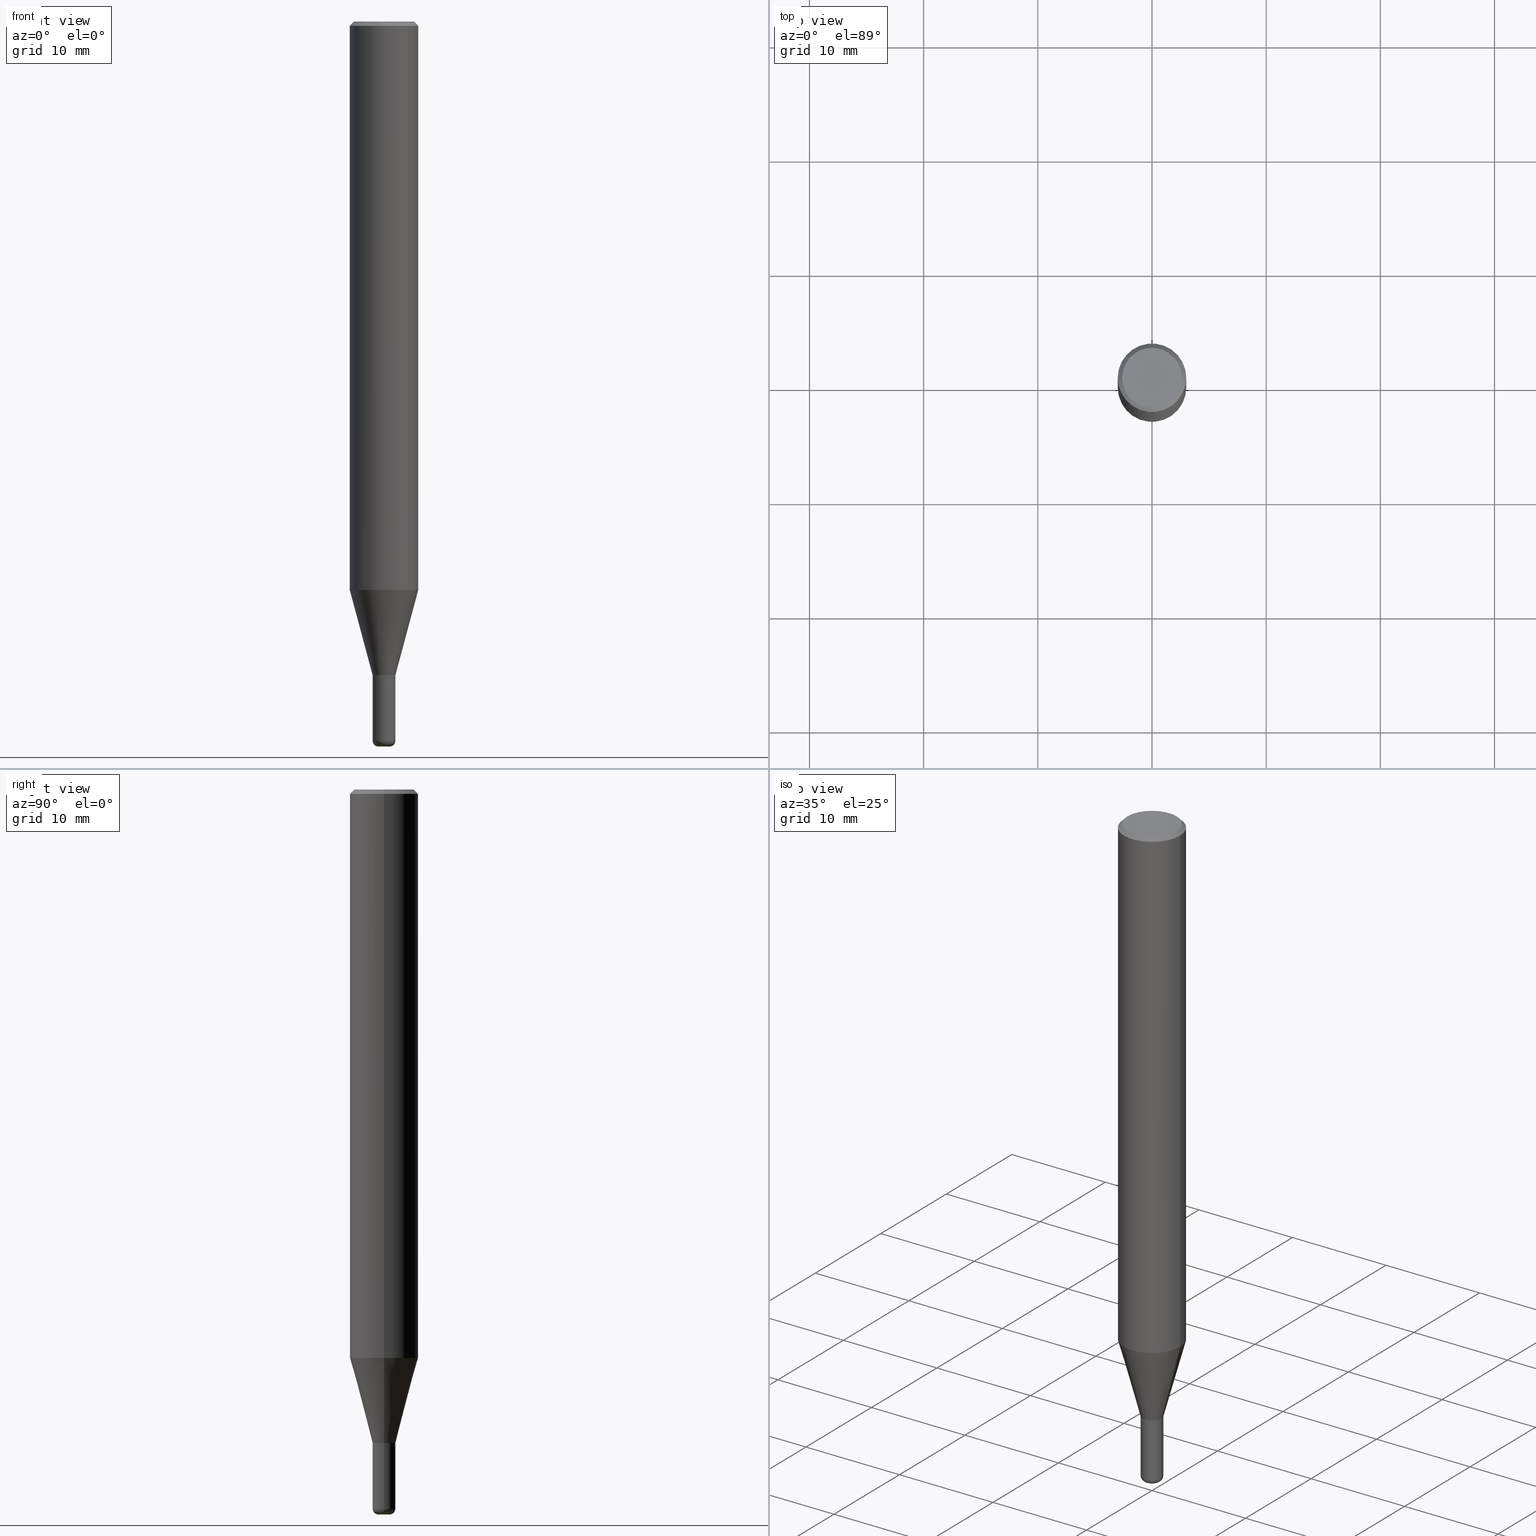
[diagram: canonical four-view strip — front | top / right | iso, engineering-drawing reading convention]
A machine part, canonical four-view strip (front | top / right | iso — engineering-drawing reading convention). The complete STEP part file that produces these views, byte-faithful:
ISO-10303-21;
HEADER;
FILE_DESCRIPTION (( 'STEP AP203' ),
    '1' );
FILE_NAME ('05351.STEP',
    '2024-02-29T19:37:40',
    ( '' ),
    ( '' ),
    'SwSTEP 2.0',
    'SolidWorks 2023',
    '' );
FILE_SCHEMA (( 'CONFIG_CONTROL_DESIGN' ));
ENDSEC;

DATA;
#1 = AXIS2_PLACEMENT_3D ( 'NONE', #67, #496, #35 ) ;
#2 = CARTESIAN_POINT ( 'NONE',  ( 0.000000000000000000, 0.000000000000000000, 0.000000000000000000 ) ) ;
#3 = LOCAL_TIME ( 14, 37, 40.00000000000000000, #170 ) ;
#4 = CYLINDRICAL_SURFACE ( 'NONE', #158, 0.03935000000000008630 ) ;
#5 = CARTESIAN_POINT ( 'NONE',  ( 6.065496279980994755E-29, -8.659921164732655335E-15, -2.480300000000000171 ) ) ;
#6 = CARTESIAN_POINT ( 'NONE',  ( 0.000000000000000000, 0.000000000000000000, 0.000000000000000000 ) ) ;
#7 = ORIENTED_EDGE ( 'NONE', *, *, #79, .T. ) ;
#8 = CYLINDRICAL_SURFACE ( 'NONE', #355, 0.03935000000000004466 ) ;
#9 = CIRCLE ( 'NONE', #62, 0.01965000000000000427 ) ;
#10 = VERTEX_POINT ( 'NONE', #276 ) ;
#11 = PERSON_AND_ORGANIZATION_ROLE ( 'creator' ) ;
#12 = LINE ( 'NONE', #171, #68 ) ;
#13 = ORIENTED_EDGE ( 'NONE', *, *, #187, .F. ) ;
#14 = CARTESIAN_POINT ( 'NONE',  ( 7.199434520694541042E-16, 0.1031000000000000111, -3.599717260347282847E-16 ) ) ;
#15 = ORIENTED_EDGE ( 'NONE', *, *, #301, .T. ) ;
#16 = DATE_TIME_ROLE ( 'creation_date' ) ;
#17 = DIRECTION ( 'NONE',  ( -2.445468806185136597E-29, 3.491481338843145583E-15, 1.000000000000000000 ) ) ;
#18 = VECTOR ( 'NONE', #469, 39.37007874015748143 ) ;
#19 = DIRECTION ( 'NONE',  ( 1.000000000000000000, -6.982962677686269077E-15, 0.000000000000000000 ) ) ;
#20 = ORIENTED_EDGE ( 'NONE', *, *, #58, .T. ) ;
#21 = DIRECTION ( 'NONE',  ( 2.445468806185136597E-29, -3.491481338843145583E-15, -1.000000000000000000 ) ) ;
#22 = EDGE_CURVE ( 'NONE', #484, #144, #117, .T. ) ;
#23 = VERTEX_POINT ( 'NONE', #186 ) ;
#24 = DIRECTION ( 'NONE',  ( 1.000000000000000000, -6.982962677686264344E-15, 4.883557194083111780E-29 ) ) ;
#25 = CARTESIAN_POINT ( 'NONE',  ( 5.536052283441912610E-29, -7.904015454873113525E-15, -2.263800000000000257 ) ) ;
#26 = PRODUCT_DEFINITION ( 'UNKNOWN', '', #143, #205 ) ;
#27 = CARTESIAN_POINT ( 'NONE',  ( -0.03885000000000005116, -7.627969602030314239E-15, -2.263800000000000257 ) ) ;
#28 = AXIS2_PLACEMENT_3D ( 'NONE', #197, #353, #70 ) ;
#29 = CARTESIAN_POINT ( 'NONE',  ( -0.03935000000000004466, 2.795985665215997405E-16, -1.935600958015307744E-30 ) ) ;
#30 = EDGE_LOOP ( 'NONE', ( #15, #291, #403, #41 ) ) ;
#31 = DIRECTION ( 'NONE',  ( -2.438088387897960049E-29, 3.491481338843145188E-15, 1.000000000000000000 ) ) ;
#32 = CC_DESIGN_APPROVAL ( #307, ( #305 ) ) ;
#33 = DIRECTION ( 'NONE',  ( 1.000000000000000000, -6.982962677686265922E-15, 4.876176775795935232E-29 ) ) ;
#34 = EDGE_CURVE ( 'NONE', #153, #351, #242, .T. ) ;
#35 = DIRECTION ( 'NONE',  ( 1.000000000000000000, -6.982962677686260400E-15, 0.000000000000000000 ) ) ;
#36 = DIRECTION ( 'NONE',  ( -6.982962677686266711E-15, -1.000000000000000000, 3.491481338843145583E-15 ) ) ;
#37 = ADVANCED_FACE ( 'NONE', ( #111 ), #196, .F. ) ;
#38 = AXIS2_PLACEMENT_3D ( 'NONE', #444, #200, #245 ) ;
#39 = AXIS2_PLACEMENT_3D ( 'NONE', #65, #17, #452 ) ;
#40 = PLANE ( 'NONE',  #393 ) ;
#41 = ORIENTED_EDGE ( 'NONE', *, *, #66, .F. ) ;
#42 = CARTESIAN_POINT ( 'NONE',  ( 0.1180999999999999966, -7.667645655887934594E-15, -1.959900998903951086 ) ) ;
#43 = EDGE_LOOP ( 'NONE', ( #442, #156 ) ) ;
#44 = DIRECTION ( 'NONE',  ( -1.000000000000000000, 6.982962677686265922E-15, -4.876176775795935793E-29 ) ) ;
#45 = DIRECTION ( 'NONE',  ( -2.445468806185136597E-29, 3.491481338843145583E-15, 1.000000000000000000 ) ) ;
#46 = EDGE_LOOP ( 'NONE', ( #169, #487, #88, #399 ) ) ;
#47 = APPROVAL_STATUS ( 'not_yet_approved' ) ;
#48 = CARTESIAN_POINT ( 'NONE',  ( -0.03935000000000003773, -6.796654433841794913E-15, -2.253800000000000026 ) ) ;
#49 = VECTOR ( 'NONE', #57, 39.37007874015748143 ) ;
#50 = LOCAL_TIME ( 14, 37, 40.00000000000000000, #506 ) ;
#51 = EDGE_LOOP ( 'NONE', ( #128, #223, #406, #289 ) ) ;
#52 = DIRECTION ( 'NONE',  ( 1.000000000000000000, 0.000000000000000000, 0.000000000000000000 ) ) ;
#53 = DIRECTION ( 'NONE',  ( 1.000000000000000000, -6.982962677686273021E-15, 0.000000000000000000 ) ) ;
#54 = DIRECTION ( 'NONE',  ( 1.000000000000000000, -6.982962677686263555E-15, 0.000000000000000000 ) ) ;
#55 = EDGE_LOOP ( 'NONE', ( #56, #252, #368, #219 ) ) ;
#56 = ORIENTED_EDGE ( 'NONE', *, *, #22, .F. ) ;
#57 = DIRECTION ( 'NONE',  ( -2.445468806185136877E-29, 3.491481338843145188E-15, 1.000000000000000000 ) ) ;
#58 = EDGE_CURVE ( 'NONE', #325, #152, #304, .T. ) ;
#59 = ORIENTED_EDGE ( 'NONE', *, *, #507, .F. ) ;
#60 = COORDINATED_UNIVERSAL_TIME_OFFSET ( 5, 0, .BEHIND. ) ;
#61 = CARTESIAN_POINT ( 'NONE',  ( 5.511597595380061064E-29, -7.869100641484681875E-15, -2.253800000000000026 ) ) ;
#62 = AXIS2_PLACEMENT_3D ( 'NONE', #345, #308, #227 ) ;
#63 = APPROVAL_PERSON_ORGANIZATION ( #451, #421, #244 ) ;
#64 = CARTESIAN_POINT ( 'NONE',  ( 0.03935000000000016956, -8.934700746099610252E-15, -2.480300000000000171 ) ) ;
#65 = CARTESIAN_POINT ( 'NONE',  ( 5.511597595380061064E-29, -7.869100641484681875E-15, -2.253800000000000026 ) ) ;
#66 = EDGE_CURVE ( 'NONE', #209, #153, #348, .T. ) ;
#67 = CARTESIAN_POINT ( 'NONE',  ( 5.534829549038819808E-29, -7.902269714203691232E-15, -2.263300000000000090 ) ) ;
#68 = VECTOR ( 'NONE', #391, 39.37007874015748143 ) ;
#69 = CONICAL_SURFACE ( 'NONE', #265, 0.1180999999999999966, 0.7853981633974495002 ) ;
#70 = DIRECTION ( 'NONE',  ( 1.000000000000000000, -6.982962677686265133E-15, 0.000000000000000000 ) ) ;
#71 = COORDINATED_UNIVERSAL_TIME_OFFSET ( 5, 0, .BEHIND. ) ;
#72 = DIRECTION ( 'NONE',  ( 1.000000000000000000, -6.982962677686265922E-15, 4.876176775795935793E-29 ) ) ;
#73 = APPROVAL_DATE_TIME ( #110, #307 ) ;
#74 = CARTESIAN_POINT ( 'NONE',  ( 0.000000000000000000, 0.000000000000000000, 0.000000000000000000 ) ) ;
#75 = CARTESIAN_POINT ( 'NONE',  ( 0.03935000000000003773, -8.143880222851636792E-15, -2.253800000000000026 ) ) ;
#76 = ADVANCED_FACE ( 'NONE', ( #429 ), #89, .F. ) ;
#77 =( LENGTH_UNIT ( ) NAMED_UNIT ( * ) SI_UNIT ( $, .METRE. ) );
#78 = CARTESIAN_POINT ( 'NONE',  ( 3.668203209277694140E-31, -5.237222008264703607E-17, -0.01499999999999995781 ) ) ;
#79 = EDGE_CURVE ( 'NONE', #256, #206, #466, .T. ) ;
#80 = DIRECTION ( 'NONE',  ( 1.000000000000000000, -6.982962677686268288E-15, 0.000000000000000000 ) ) ;
#81 = ORIENTED_EDGE ( 'NONE', *, *, #79, .F. ) ;
#82 = DIRECTION ( 'NONE',  ( 1.000000000000000000, -6.982962677686273021E-15, 0.000000000000000000 ) ) ;
#83 = EDGE_LOOP ( 'NONE', ( #13, #333, #327, #491 ) ) ;
#84 = ORIENTED_EDGE ( 'NONE', *, *, #255, .F. ) ;
#85 = DIRECTION ( 'NONE',  ( -2.445468806185136597E-29, 3.491481338843145583E-15, 1.000000000000000000 ) ) ;
#86 = PRODUCT ( '05351', '05351', '', ( #479 ) ) ;
#87 = EDGE_CURVE ( 'NONE', #152, #325, #155, .T. ) ;
#88 = ORIENTED_EDGE ( 'NONE', *, *, #127, .F. ) ;
#89 = PLANE ( 'NONE',  #277 ) ;
#90 = CIRCLE ( 'NONE', #380, 0.01965000000000000427 ) ;
#91 = AXIS2_PLACEMENT_3D ( 'NONE', #362, #401, #136 ) ;
#92 = FACE_OUTER_BOUND ( 'NONE', #30, .T. ) ;
#93 = ORIENTED_EDGE ( 'NONE', *, *, #340, .F. ) ;
#94 = APPROVAL_DATE_TIME ( #254, #214 ) ;
#95 = ORIENTED_EDGE ( 'NONE', *, *, #517, .T. ) ;
#96 = CARTESIAN_POINT ( 'NONE',  ( 5.511597595380061064E-29, -7.869100641484681875E-15, -2.253800000000000026 ) ) ;
#97 = ADVANCED_FACE ( 'NONE', ( #439 ), #474, .T. ) ;
#98 = EDGE_LOOP ( 'NONE', ( #437, #369 ) ) ;
#99 = DIRECTION ( 'NONE',  ( 1.000000000000000000, -6.982962677686265922E-15, 4.876176775795935232E-29 ) ) ;
#100 = FACE_OUTER_BOUND ( 'NONE', #499, .T. ) ;
#101 = CLOSED_SHELL ( 'NONE', ( #120, #349, #397, #151, #416, #433, #97, #483, #378, #76, #424, #516 ) ) ;
#102 = CARTESIAN_POINT ( 'NONE',  ( 5.511597595380061064E-29, -7.869100641484681875E-15, -2.253800000000000026 ) ) ;
#103 = ORIENTED_EDGE ( 'NONE', *, *, #267, .F. ) ;
#104 = DIRECTION ( 'NONE',  ( -2.445468806185136597E-29, 3.491481338843145583E-15, 1.000000000000000000 ) ) ;
#105 = ADVANCED_FACE ( 'NONE', ( #126 ), #4, .T. ) ;
#106 = APPROVAL_STATUS ( 'not_yet_approved' ) ;
#107 = AXIS2_PLACEMENT_3D ( 'NONE', #354, #161, #239 ) ;
#108 = PERSON_AND_ORGANIZATION ( #482, #388 ) ;
#109 = FACE_OUTER_BOUND ( 'NONE', #373, .T. ) ;
#110 = DATE_AND_TIME ( #232, #343 ) ;
#111 = FACE_OUTER_BOUND ( 'NONE', #98, .T. ) ;
#112 = DIRECTION ( 'NONE',  ( 1.000000000000000000, -6.982962677686308520E-15, 0.000000000000000000 ) ) ;
#113 =( NAMED_UNIT ( * ) SI_UNIT ( $, .STERADIAN. ) SOLID_ANGLE_UNIT ( ) );
#114 = VECTOR ( 'NONE', #515, 39.37007874015748854 ) ;
#115 = AXIS2_PLACEMENT_3D ( 'NONE', #61, #222, #407 ) ;
#116 = EDGE_CURVE ( 'NONE', #249, #292, #210, .T. ) ;
#117 = LINE ( 'NONE', #29, #372 ) ;
#118 = DIRECTION ( 'NONE',  ( -2.445468806185136597E-29, 3.491481338843145583E-15, 1.000000000000000000 ) ) ;
#119 = CARTESIAN_POINT ( 'NONE',  ( 6.065496279980994755E-29, -8.659921164732655335E-15, -2.480300000000000171 ) ) ;
#120 = ADVANCED_FACE ( 'NONE', ( #431 ), #8, .T. ) ;
#121 = DIRECTION ( 'NONE',  ( -2.445468806185136597E-29, 3.491481338843145583E-15, 1.000000000000000000 ) ) ;
#122 = ORIENTED_EDGE ( 'NONE', *, *, #263, .F. ) ;
#123 = AXIS2_PLACEMENT_3D ( 'NONE', #78, #45, #321 ) ;
#124 = CC_DESIGN_APPROVAL ( #421, ( #143 ) ) ;
#125 = CYLINDRICAL_SURFACE ( 'NONE', #159, 0.03935000000000004466 ) ;
#126 = FACE_OUTER_BOUND ( 'NONE', #83, .T. ) ;
#127 = EDGE_CURVE ( 'NONE', #292, #268, #509, .T. ) ;
#128 = ORIENTED_EDGE ( 'NONE', *, *, #312, .F. ) ;
#129 = PRODUCT_DEFINITION_SHAPE ( 'NONE', 'NONE',  #26 ) ;
#130 = EDGE_CURVE ( 'NONE', #153, #152, #481, .T. ) ;
#131 = DIRECTION ( 'NONE',  ( -2.445468806185136877E-29, 3.491481338843145188E-15, 1.000000000000000000 ) ) ;
#132 = CARTESIAN_POINT ( 'NONE',  ( 0.1031000000000000111, -7.849571885948548761E-16, 5.261941714946591942E-30 ) ) ;
#133 = ORIENTED_EDGE ( 'NONE', *, *, #384, .F. ) ;
#134 = DIRECTION ( 'NONE',  ( 0.000000000000000000, 0.000000000000000000, 1.000000000000000000 ) ) ;
#135 = CARTESIAN_POINT ( 'NONE',  ( 0.01965000000000000427, -8.797136381349191038E-15, -2.480300000000000171 ) ) ;
#136 = DIRECTION ( 'NONE',  ( 1.000000000000000000, -6.982962677686273021E-15, 0.000000000000000000 ) ) ;
#137 = APPLICATION_CONTEXT ( 'configuration controlled 3d designs of mechanical parts and assemblies' ) ;
#138 = ORIENTED_EDGE ( 'NONE', *, *, #116, .T. ) ;
#139 = CARTESIAN_POINT ( 'NONE',  ( 0.000000000000000000, 0.000000000000000000, 0.000000000000000000 ) ) ;
#140 = DIRECTION ( 'NONE',  ( 2.438088387897960049E-29, -3.491481338843145188E-15, -1.000000000000000000 ) ) ;
#141 = CIRCLE ( 'NONE', #317, 0.1031000000000000111 ) ;
#142 = PERSON_AND_ORGANIZATION ( #482, #388 ) ;
#143 = PRODUCT_DEFINITION_FORMATION_WITH_SPECIFIED_SOURCE ( 'ANY', '', #86, .NOT_KNOWN. ) ;
#144 = VERTEX_POINT ( 'NONE', #48 ) ;
#145 = FACE_OUTER_BOUND ( 'NONE', #261, .T. ) ;
#146 = EDGE_LOOP ( 'NONE', ( #133, #315, #138, #240 ) ) ;
#147 = CARTESIAN_POINT ( 'NONE',  ( 0.01965000000000000427, -8.865918563724402223E-15, -2.500000000000000444 ) ) ;
#148 = LINE ( 'NONE', #269, #427 ) ;
#149 = AXIS2_PLACEMENT_3D ( 'NONE', #102, #500, #271 ) ;
#150 = CC_DESIGN_APPROVAL ( #214, ( #26 ) ) ;
#151 = ADVANCED_FACE ( 'NONE', ( #293 ), #290, .T. ) ;
#152 = VERTEX_POINT ( 'NONE', #251 ) ;
#153 = VERTEX_POINT ( 'NONE', #42 ) ;
#154 = EDGE_CURVE ( 'NONE', #409, #152, #400, .T. ) ;
#155 = CIRCLE ( 'NONE', #123, 0.1180999999999999966 ) ;
#156 = ORIENTED_EDGE ( 'NONE', *, *, #267, .T. ) ;
#157 = CARTESIAN_POINT ( 'NONE',  ( 6.113672015462842613E-29, -8.728703347107866520E-15, -2.500000000000000444 ) ) ;
#158 = AXIS2_PLACEMENT_3D ( 'NONE', #361, #288, #212 ) ;
#159 = AXIS2_PLACEMENT_3D ( 'NONE', #74, #195, #350 ) ;
#160 = DIRECTION ( 'NONE',  ( -2.445468806185136597E-29, 3.491481338843145583E-15, 1.000000000000000000 ) ) ;
#161 = DIRECTION ( 'NONE',  ( -2.445468806185136597E-29, 3.491481338843145583E-15, 1.000000000000000000 ) ) ;
#162 = CARTESIAN_POINT ( 'NONE',  ( 2.747795813670099893E-16, 0.03934999999999209963, -2.263800000000000257 ) ) ;
#163 = CC_DESIGN_PERSON_AND_ORGANIZATION_ASSIGNMENT ( #211, #297, ( #86 ) ) ;
#164 = CARTESIAN_POINT ( 'NONE',  ( 0.03885000000000005116, -8.175303554901225434E-15, -2.263800000000000257 ) ) ;
#165 = ORIENTED_EDGE ( 'NONE', *, *, #335, .F. ) ;
#166 = VECTOR ( 'NONE', #311, 39.37007874015748143 ) ;
#167 = APPROVAL_PERSON_ORGANIZATION ( #275, #307, #423 ) ;
#168 = DIRECTION ( 'NONE',  ( -2.445468806185136597E-29, 3.491481338843145583E-15, 1.000000000000000000 ) ) ;
#169 = ORIENTED_EDGE ( 'NONE', *, *, #341, .T. ) ;
#170 = COORDINATED_UNIVERSAL_TIME_OFFSET ( 5, 0, .BEHIND. ) ;
#171 = CARTESIAN_POINT ( 'NONE',  ( -0.1180999999999999966, 7.723156721521010848E-16, -0.01499999999999995781 ) ) ;
#172 = EDGE_CURVE ( 'NONE', #260, #325, #12, .T. ) ;
#173 = ORIENTED_EDGE ( 'NONE', *, *, #517, .F. ) ;
#174 = EDGE_LOOP ( 'NONE', ( #179, #81 ) ) ;
#175 = CIRCLE ( 'NONE', #489, 0.03885000000000005116 ) ;
#176 = CONICAL_SURFACE ( 'NONE', #39, 0.03935000000000003773, 0.2617993877991494078 ) ;
#177 = EDGE_CURVE ( 'NONE', #268, #292, #347, .T. ) ;
#178 = DIRECTION ( 'NONE',  ( 1.000000000000000000, -6.982962677686266711E-15, 4.876176775795935793E-29 ) ) ;
#179 = ORIENTED_EDGE ( 'NONE', *, *, #208, .F. ) ;
#180 = DIRECTION ( 'NONE',  ( -2.445468806185136877E-29, 3.491481338843145188E-15, 1.000000000000000000 ) ) ;
#181 = ORIENTED_EDGE ( 'NONE', *, *, #248, .T. ) ;
#182 = DIRECTION ( 'NONE',  ( -0.2588190451025206840, 5.211531920934545520E-15, 0.9659258262890682012 ) ) ;
#183 = CIRCLE ( 'NONE', #28, 0.1180999999999999966 ) ;
#184 = AXIS2_PLACEMENT_3D ( 'NONE', #192, #118, #279 ) ;
#185 = CARTESIAN_POINT ( 'NONE',  ( 0.03935000000000005160, -8.177049295570646149E-15, -2.263300000000000090 ) ) ;
#186 = CARTESIAN_POINT ( 'NONE',  ( -0.01965000000000000427, -8.484702148871030792E-15, -2.500000000000000444 ) ) ;
#187 = EDGE_CURVE ( 'NONE', #268, #10, #283, .T. ) ;
#188 = ORIENTED_EDGE ( 'NONE', *, *, #87, .F. ) ;
#189 = PERSON_AND_ORGANIZATION_ROLE ( 'classification_officer' ) ;
#190 = DIRECTION ( 'NONE',  ( 1.000000000000000000, -6.982962677686266711E-15, 0.000000000000000000 ) ) ;
#191 = CIRCLE ( 'NONE', #475, 0.03935000000000000303 ) ;
#192 = CARTESIAN_POINT ( 'NONE',  ( 5.536052283441912610E-29, -7.904015454873113525E-15, -2.263800000000000257 ) ) ;
#193 = VECTOR ( 'NONE', #410, 39.37007874015748143 ) ;
#194 = SECURITY_CLASSIFICATION_LEVEL ( 'unclassified' ) ;
#195 = DIRECTION ( 'NONE',  ( -2.445468806185136597E-29, 3.491481338843145583E-15, 1.000000000000000000 ) ) ;
#196 = PLANE ( 'NONE',  #446 ) ;
#197 = CARTESIAN_POINT ( 'NONE',  ( 4.792876756030702270E-29, -6.842957763653185543E-15, -1.959900998903951086 ) ) ;
#198 = MANIFOLD_SOLID_BREP ( 'Body-Move/Copy2[1]', #508 ) ;
#199 = ADVANCED_FACE ( 'NONE', ( #392 ), #40, .F. ) ;
#200 = DIRECTION ( 'NONE',  ( -2.445468806185136597E-29, 3.491481338843145583E-15, 1.000000000000000000 ) ) ;
#201 = CIRCLE ( 'NONE', #253, 0.03935000000000000303 ) ;
#202 = CARTESIAN_POINT ( 'NONE',  ( 0.1180999999999999966, -8.246878922347480654E-16, 5.758764772215000440E-30 ) ) ;
#203 = CC_DESIGN_PERSON_AND_ORGANIZATION_ASSIGNMENT ( #108, #464, ( #143 ) ) ;
#204 = CARTESIAN_POINT ( 'NONE',  ( 0.1180999999999999966, -8.625970336194649143E-16, -0.01499999999999995781 ) ) ;
#205 = DESIGN_CONTEXT ( 'detailed design', #505, 'design' ) ;
#206 = VERTEX_POINT ( 'NONE', #164 ) ;
#207 = DIRECTION ( 'NONE',  ( 1.000000000000000000, -6.982962677686265922E-15, 4.876176775795935793E-29 ) ) ;
#208 = EDGE_CURVE ( 'NONE', #206, #256, #175, .T. ) ;
#209 = VERTEX_POINT ( 'NONE', #430 ) ;
#210 = CIRCLE ( 'NONE', #272, 0.01970000000000016877 ) ;
#211 = PERSON_AND_ORGANIZATION ( #482, #388 ) ;
#212 = DIRECTION ( 'NONE',  ( 1.000000000000000000, -6.982962677686266711E-15, 4.876176775795935793E-29 ) ) ;
#213 = DIRECTION ( 'NONE',  ( 2.445468806185136597E-29, -3.491481338843145583E-15, -1.000000000000000000 ) ) ;
#214 = APPROVAL ( #47, 'UNSPECIFIED' ) ;
#215 = ORIENTED_EDGE ( 'NONE', *, *, #172, .F. ) ;
#216 = CALENDAR_DATE ( 2024, 29, 2 ) ;
#217 = APPROVAL_DATE_TIME ( #415, #421 ) ;
#218 = CARTESIAN_POINT ( 'NONE',  ( -0.01965000000000000427, -8.520299517155796038E-15, -2.480300000000000171 ) ) ;
#219 = ORIENTED_EDGE ( 'NONE', *, *, #405, .F. ) ;
#220 = CALENDAR_DATE ( 2024, 29, 2 ) ;
#221 = EDGE_CURVE ( 'NONE', #23, #249, #9, .T. ) ;
#222 = DIRECTION ( 'NONE',  ( -2.445468806185136597E-29, 3.491481338843145583E-15, 1.000000000000000000 ) ) ;
#223 = ORIENTED_EDGE ( 'NONE', *, *, #340, .T. ) ;
#224 = AXIS2_PLACEMENT_3D ( 'NONE', #514, #512, #422 ) ;
#225 = CARTESIAN_POINT ( 'NONE',  ( 3.668203209277694140E-31, -5.237222008264703607E-17, -0.01499999999999995781 ) ) ;
#226 = DIRECTION ( 'NONE',  ( -2.445468806185136597E-29, 3.491481338843145583E-15, 1.000000000000000000 ) ) ;
#227 = DIRECTION ( 'NONE',  ( 1.000000000000000000, -6.982962677686308520E-15, 0.000000000000000000 ) ) ;
#228 = ORIENTED_EDGE ( 'NONE', *, *, #270, .F. ) ;
#229 = CC_DESIGN_DATE_AND_TIME_ASSIGNMENT ( #463, #513, ( #305 ) ) ;
#230 = CARTESIAN_POINT ( 'NONE',  ( 3.668203209277694140E-31, -5.237222008264703607E-17, -0.01499999999999995781 ) ) ;
#231 = DIRECTION ( 'NONE',  ( -2.445468806185136597E-29, 3.491481338843145583E-15, 1.000000000000000000 ) ) ;
#232 = CALENDAR_DATE ( 2024, 29, 2 ) ;
#233 = SHAPE_DEFINITION_REPRESENTATION ( #129, #358 ) ;
#234 = FACE_OUTER_BOUND ( 'NONE', #46, .T. ) ;
#235 = ORIENTED_EDGE ( 'NONE', *, *, #154, .F. ) ;
#236 = AXIS2_PLACEMENT_3D ( 'NONE', #357, #121, #82 ) ;
#237 = VECTOR ( 'NONE', #287, 39.37007874015748143 ) ;
#238 = DIRECTION ( 'NONE',  ( -2.445468806185136877E-29, 3.491481338843145188E-15, 1.000000000000000000 ) ) ;
#239 = DIRECTION ( 'NONE',  ( 1.000000000000000000, -6.982962677686265133E-15, 0.000000000000000000 ) ) ;
#240 = ORIENTED_EDGE ( 'NONE', *, *, #177, .F. ) ;
#241 = ADVANCED_FACE ( 'NONE', ( #503 ), #412, .T. ) ;
#242 = CIRCLE ( 'NONE', #342, 0.1180999999999999966 ) ;
#243 = LOCAL_TIME ( 14, 37, 40.00000000000000000, #60 ) ;
#244 = APPROVAL_ROLE ( '' ) ;
#245 = DIRECTION ( 'NONE',  ( 1.000000000000000000, -6.982962677686266711E-15, 4.876176775795936353E-29 ) ) ;
#246 = ORIENTED_EDGE ( 'NONE', *, *, #301, .F. ) ;
#247 = DIRECTION ( 'NONE',  ( 1.000000000000000000, -6.982962677686266711E-15, 4.876176775795936353E-29 ) ) ;
#248 = EDGE_CURVE ( 'NONE', #256, #484, #306, .T. ) ;
#249 = VERTEX_POINT ( 'NONE', #147 ) ;
#250 = PERSON_AND_ORGANIZATION ( #482, #388 ) ;
#251 = CARTESIAN_POINT ( 'NONE',  ( 0.1180999999999999966, -8.770601123173951446E-16, -0.01499999999999995781 ) ) ;
#252 = ORIENTED_EDGE ( 'NONE', *, *, #335, .T. ) ;
#253 = AXIS2_PLACEMENT_3D ( 'NONE', #25, #226, #453 ) ;
#254 = DATE_AND_TIME ( #216, #273 ) ;
#255 = EDGE_CURVE ( 'NONE', #292, #323, #303, .T. ) ;
#256 = VERTEX_POINT ( 'NONE', #377 ) ;
#257 = PERSON_AND_ORGANIZATION ( #482, #388 ) ;
#258 = LINE ( 'NONE', #332, #193 ) ;
#259 = CARTESIAN_POINT ( 'NONE',  ( -0.1031000000000000111, 7.461295621107775452E-16, -5.126375781645864005E-30 ) ) ;
#260 = VERTEX_POINT ( 'NONE', #259 ) ;
#261 = EDGE_LOOP ( 'NONE', ( #103, #447, #434, #215 ) ) ;
#262 = CARTESIAN_POINT ( 'NONE',  ( -0.03935000000000003773, -7.589502074963082480E-15, -2.253800000000000026 ) ) ;
#263 = EDGE_CURVE ( 'NONE', #323, #10, #191, .T. ) ;
#264 = AXIS2_PLACEMENT_3D ( 'NONE', #485, #329, #247 ) ;
#265 = AXIS2_PLACEMENT_3D ( 'NONE', #448, #213, #266 ) ;
#266 = DIRECTION ( 'NONE',  ( -1.000000000000000000, 6.982962677686266711E-15, 0.000000000000000000 ) ) ;
#267 = EDGE_CURVE ( 'NONE', #409, #260, #141, .T. ) ;
#268 = VERTEX_POINT ( 'NONE', #336 ) ;
#269 = CARTESIAN_POINT ( 'NONE',  ( -0.1180999999999999966, 8.391509709326782957E-16, -5.809262341591043784E-30 ) ) ;
#270 = EDGE_CURVE ( 'NONE', #144, #351, #417, .T. ) ;
#271 = DIRECTION ( 'NONE',  ( 1.000000000000000000, -6.982962677686263555E-15, 0.000000000000000000 ) ) ;
#272 = AXIS2_PLACEMENT_3D ( 'NONE', #135, #36, #80 ) ;
#273 = LOCAL_TIME ( 14, 37, 40.00000000000000000, #366 ) ;
#274 = CIRCLE ( 'NONE', #476, 0.01970000000000016877 ) ;
#275 = PERSON_AND_ORGANIZATION ( #482, #388 ) ;
#276 = CARTESIAN_POINT ( 'NONE',  ( -0.03935000000000000303, -8.002369743281284246E-15, -2.263800000000000257 ) ) ;
#277 = AXIS2_PLACEMENT_3D ( 'NONE', #398, #436, #207 ) ;
#278 = CIRCLE ( 'NONE', #224, 0.03935000000000005160 ) ;
#279 = DIRECTION ( 'NONE',  ( 1.000000000000000000, -6.982962677686273021E-15, 0.000000000000000000 ) ) ;
#280 = DIRECTION ( 'NONE',  ( 1.000000000000000000, -6.982962677686265133E-15, 0.000000000000000000 ) ) ;
#281 = ORIENTED_EDGE ( 'NONE', *, *, #326, .T. ) ;
#282 = DIRECTION ( 'NONE',  ( -2.445468806185136597E-29, 3.491481338843145583E-15, 1.000000000000000000 ) ) ;
#283 = LINE ( 'NONE', #318, #18 ) ;
#284 = VECTOR ( 'NONE', #131, 39.37007874015748143 ) ;
#285 = AXIS2_PLACEMENT_3D ( 'NONE', #2, #160, #33 ) ;
#286 = ORIENTED_EDGE ( 'NONE', *, *, #263, .T. ) ;
#287 = DIRECTION ( 'NONE',  ( -2.445468806185136877E-29, 3.491481338843145188E-15, 1.000000000000000000 ) ) ;
#288 = DIRECTION ( 'NONE',  ( -2.445468806185136597E-29, 3.491481338843145583E-15, 1.000000000000000000 ) ) ;
#289 = ORIENTED_EDGE ( 'NONE', *, *, #58, .F. ) ;
#290 = CYLINDRICAL_SURFACE ( 'NONE', #38, 0.1180999999999999966 ) ;
#291 = ORIENTED_EDGE ( 'NONE', *, *, #270, .T. ) ;
#292 = VERTEX_POINT ( 'NONE', #64 ) ;
#293 = FACE_OUTER_BOUND ( 'NONE', #331, .T. ) ;
#294 = FACE_OUTER_BOUND ( 'NONE', #408, .T. ) ;
#295 = VERTEX_POINT ( 'NONE', #185 ) ;
#296 = AXIS2_PLACEMENT_3D ( 'NONE', #14, #140, #44 ) ;
#297 = PERSON_AND_ORGANIZATION_ROLE ( 'design_owner' ) ;
#298 = FACE_OUTER_BOUND ( 'NONE', #364, .T. ) ;
#299 = ORIENTED_EDGE ( 'NONE', *, *, #130, .F. ) ;
#300 = EDGE_LOOP ( 'NONE', ( #286, #281 ) ) ;
#301 = EDGE_CURVE ( 'NONE', #209, #144, #455, .T. ) ;
#302 = CARTESIAN_POINT ( 'NONE',  ( 0.03935000000000000303, -8.178795036240066864E-15, -2.263800000000000257 ) ) ;
#303 = LINE ( 'NONE', #458, #49 ) ;
#304 = CIRCLE ( 'NONE', #313, 0.1180999999999999966 ) ;
#305 = SECURITY_CLASSIFICATION ( '', '', #194 ) ;
#306 = LINE ( 'NONE', #27, #166 ) ;
#307 = APPROVAL ( #106, 'UNSPECIFIED' ) ;
#308 = DIRECTION ( 'NONE',  ( -2.445468806185136597E-29, 3.491481338843145583E-15, 1.000000000000000000 ) ) ;
#309 = CARTESIAN_POINT ( 'NONE',  ( 6.199188644380781470E-29, -8.606238667193129794E-15, -2.500000000000000000 ) ) ;
#310 = ORIENTED_EDGE ( 'NONE', *, *, #22, .T. ) ;
#311 = DIRECTION ( 'NONE',  ( -0.7071067811864267805, 7.493145998869918709E-15, 0.7071067811866682540 ) ) ;
#312 = EDGE_CURVE ( 'NONE', #351, #325, #148, .T. ) ;
#313 = AXIS2_PLACEMENT_3D ( 'NONE', #230, #383, #190 ) ;
#314 = CONICAL_SURFACE ( 'NONE', #456, 0.1180999999999999966, 0.7853981633974495002 ) ;
#315 = ORIENTED_EDGE ( 'NONE', *, *, #221, .T. ) ;
#316 = ORIENTED_EDGE ( 'NONE', *, *, #172, .T. ) ;
#317 = AXIS2_PLACEMENT_3D ( 'NONE', #493, #104, #99 ) ;
#318 = CARTESIAN_POINT ( 'NONE',  ( -0.03935000000000008630, 2.795985665216000363E-16, -1.935600958015309846E-30 ) ) ;
#319 = DIRECTION ( 'NONE',  ( -1.000000000000000000, 6.982962677686265922E-15, -4.876176775795935793E-29 ) ) ;
#320 = LINE ( 'NONE', #473, #237 ) ;
#321 = DIRECTION ( 'NONE',  ( 1.000000000000000000, -6.982962677686266711E-15, 0.000000000000000000 ) ) ;
#322 = CC_DESIGN_SECURITY_CLASSIFICATION ( #305, ( #143 ) ) ;
#323 = VERTEX_POINT ( 'NONE', #302 ) ;
#324 = DIRECTION ( 'NONE',  ( 1.000000000000000000, -6.982962677686266711E-15, 4.876176775795935793E-29 ) ) ;
#325 = VERTEX_POINT ( 'NONE', #411 ) ;
#326 = EDGE_CURVE ( 'NONE', #10, #323, #201, .T. ) ;
#327 = ORIENTED_EDGE ( 'NONE', *, *, #255, .T. ) ;
#328 = APPROVAL_STATUS ( 'not_yet_approved' ) ;
#329 = DIRECTION ( 'NONE',  ( -2.445468806185136597E-29, 3.491481338843145583E-15, 1.000000000000000000 ) ) ;
#330 = CARTESIAN_POINT ( 'NONE',  ( 0.000000000000000000, 0.000000000000000000, 0.000000000000000000 ) ) ;
#331 = EDGE_LOOP ( 'NONE', ( #518, #420, #188, #299 ) ) ;
#332 = CARTESIAN_POINT ( 'NONE',  ( 0.03885000000000005116, -8.175303554901225434E-15, -2.263800000000000257 ) ) ;
#333 = ORIENTED_EDGE ( 'NONE', *, *, #177, .T. ) ;
#334 = TOROIDAL_SURFACE ( 'NONE', #432, 0.01965000000000000427, 0.01970000000000016877 ) ;
#335 = EDGE_CURVE ( 'NONE', #484, #295, #419, .T. ) ;
#336 = CARTESIAN_POINT ( 'NONE',  ( -0.03935000000000016956, -8.002369743281282668E-15, -2.480300000000000171 ) ) ;
#337 = ORIENTED_EDGE ( 'NONE', *, *, #478, .T. ) ;
#338 = DIRECTION ( 'NONE',  ( -1.000000000000000000, 6.982962677686266711E-15, 0.000000000000000000 ) ) ;
#339 = CARTESIAN_POINT ( 'NONE',  ( 6.065496279980994755E-29, -8.659921164732655335E-15, -2.480300000000000171 ) ) ;
#340 = EDGE_CURVE ( 'NONE', #351, #153, #183, .T. ) ;
#341 = EDGE_CURVE ( 'NONE', #249, #23, #90, .T. ) ;
#342 = AXIS2_PLACEMENT_3D ( 'NONE', #460, #344, #502 ) ;
#343 = LOCAL_TIME ( 14, 37, 40.00000000000000000, #71 ) ;
#344 = DIRECTION ( 'NONE',  ( -2.445468806185136597E-29, 3.491481338843145583E-15, 1.000000000000000000 ) ) ;
#345 = CARTESIAN_POINT ( 'NONE',  ( 6.113672015462842613E-29, -8.728703347107866520E-15, -2.500000000000000444 ) ) ;
#346 = PERSON_AND_ORGANIZATION ( #482, #388 ) ;
#347 = CIRCLE ( 'NONE', #107, 0.03935000000000016956 ) ;
#348 = LINE ( 'NONE', #75, #114 ) ;
#349 = ADVANCED_FACE ( 'NONE', ( #109 ), #418, .T. ) ;
#350 = DIRECTION ( 'NONE',  ( 1.000000000000000000, -6.982962677686266711E-15, 4.876176775795935793E-29 ) ) ;
#351 = VERTEX_POINT ( 'NONE', #428 ) ;
#352 = ORIENTED_EDGE ( 'NONE', *, *, #127, .T. ) ;
#353 = DIRECTION ( 'NONE',  ( -2.445468806185136597E-29, 3.491481338843145583E-15, 1.000000000000000000 ) ) ;
#354 = CARTESIAN_POINT ( 'NONE',  ( 6.065496279980994755E-29, -8.659921164732655335E-15, -2.480300000000000171 ) ) ;
#355 = AXIS2_PLACEMENT_3D ( 'NONE', #6, #168, #324 ) ;
#356 = AXIS2_PLACEMENT_3D ( 'NONE', #96, #445, #54 ) ;
#357 = CARTESIAN_POINT ( 'NONE',  ( 5.536052283441912610E-29, -7.904015454873113525E-15, -2.263800000000000257 ) ) ;
#358 = ADVANCED_BREP_SHAPE_REPRESENTATION ( '05351', ( #198, #365, #490 ), #374 ) ;
#359 = DIRECTION ( 'NONE',  ( 2.438088387897960049E-29, -3.491481338843145188E-15, -1.000000000000000000 ) ) ;
#360 = ORIENTED_EDGE ( 'NONE', *, *, #66, .T. ) ;
#361 = CARTESIAN_POINT ( 'NONE',  ( 0.000000000000000000, 0.000000000000000000, 0.000000000000000000 ) ) ;
#362 = CARTESIAN_POINT ( 'NONE',  ( 5.536052283441912610E-29, -7.904015454873113525E-15, -2.263800000000000257 ) ) ;
#363 = AXIS2_PLACEMENT_3D ( 'NONE', #339, #457, #24 ) ;
#364 = EDGE_LOOP ( 'NONE', ( #352, #450, #122, #84 ) ) ;
#365 = MANIFOLD_SOLID_BREP ( 'Body-Move/Copy2[2]', #101 ) ;
#366 = COORDINATED_UNIVERSAL_TIME_OFFSET ( 5, 0, .BEHIND. ) ;
#367 = DIRECTION ( 'NONE',  ( 0.7071067811865483499, -7.319954787623257623E-15, -0.7071067811865466846 ) ) ;
#368 = ORIENTED_EDGE ( 'NONE', *, *, #498, .T. ) ;
#369 = ORIENTED_EDGE ( 'NONE', *, *, #221, .F. ) ;
#370 = DATE_AND_TIME ( #220, #3 ) ;
#371 = DIRECTION ( 'NONE',  ( -2.445468806185136597E-29, 3.491481338843145583E-15, 1.000000000000000000 ) ) ;
#372 = VECTOR ( 'NONE', #238, 39.37007874015748143 ) ;
#373 = EDGE_LOOP ( 'NONE', ( #441, #181, #173, #477 ) ) ;
#374 =( GEOMETRIC_REPRESENTATION_CONTEXT ( 3 ) GLOBAL_UNCERTAINTY_ASSIGNED_CONTEXT ( ( #497 ) ) GLOBAL_UNIT_ASSIGNED_CONTEXT ( ( #385, #510, #113 ) ) REPRESENTATION_CONTEXT ( 'NONE', 'WORKASPACE' ) );
#375 = CALENDAR_DATE ( 2024, 29, 2 ) ;
#376 = CARTESIAN_POINT ( 'NONE',  ( 5.536052283441912610E-29, -7.904015454873113525E-15, -2.263800000000000257 ) ) ;
#377 = CARTESIAN_POINT ( 'NONE',  ( -0.03885000000000005116, -7.625320374856202249E-15, -2.263800000000000257 ) ) ;
#378 = ADVANCED_FACE ( 'NONE', ( #404 ), #480, .F. ) ;
#379 = ADVANCED_FACE ( 'NONE', ( #298 ), #495, .T. ) ;
#380 = AXIS2_PLACEMENT_3D ( 'NONE', #157, #231, #112 ) ;
#381 = CIRCLE ( 'NONE', #285, 0.1031000000000000111 ) ;
#382 = PERSON_AND_ORGANIZATION_ROLE ( 'creator' ) ;
#383 = DIRECTION ( 'NONE',  ( -2.445468806185136597E-29, 3.491481338843145583E-15, 1.000000000000000000 ) ) ;
#384 = EDGE_CURVE ( 'NONE', #23, #268, #274, .T. ) ;
#385 =( CONVERSION_BASED_UNIT ( 'INCH', #426 ) LENGTH_UNIT ( ) NAMED_UNIT ( #472 ) );
#386 = VECTOR ( 'NONE', #367, 39.37007874015748143 ) ;
#387 = FACE_OUTER_BOUND ( 'NONE', #55, .T. ) ;
#388 = ORGANIZATION ( 'UNSPECIFIED', 'UNSPECIFIED', '' ) ;
#389 = ORIENTED_EDGE ( 'NONE', *, *, #248, .F. ) ;
#390 = CC_DESIGN_PERSON_AND_ORGANIZATION_ASSIGNMENT ( #142, #382, ( #143 ) ) ;
#391 = DIRECTION ( 'NONE',  ( -0.7071067811865483499, 2.468850131082265738E-15, -0.7071067811865466846 ) ) ;
#392 = FACE_OUTER_BOUND ( 'NONE', #300, .T. ) ;
#393 = AXIS2_PLACEMENT_3D ( 'NONE', #162, #359, #319 ) ;
#394 = CONICAL_SURFACE ( 'NONE', #91, 0.03885000000000005116, 0.7853981633972775267 ) ;
#395 = DIRECTION ( 'NONE',  ( -2.445468806185136597E-29, 3.491481338843145583E-15, 1.000000000000000000 ) ) ;
#396 = ORIENTED_EDGE ( 'NONE', *, *, #405, .T. ) ;
#397 = ADVANCED_FACE ( 'NONE', ( #145 ), #69, .T. ) ;
#398 = CARTESIAN_POINT ( 'NONE',  ( 5.536052283441912610E-29, -7.904015454873113525E-15, -2.263800000000000257 ) ) ;
#399 = ORIENTED_EDGE ( 'NONE', *, *, #116, .F. ) ;
#400 = LINE ( 'NONE', #204, #386 ) ;
#401 = DIRECTION ( 'NONE',  ( -2.445468806185136597E-29, 3.491481338843145583E-15, 1.000000000000000000 ) ) ;
#402 = VECTOR ( 'NONE', #182, 39.37007874015748854 ) ;
#403 = ORIENTED_EDGE ( 'NONE', *, *, #34, .F. ) ;
#404 = FACE_OUTER_BOUND ( 'NONE', #43, .T. ) ;
#405 = EDGE_CURVE ( 'NONE', #144, #209, #511, .T. ) ;
#406 = ORIENTED_EDGE ( 'NONE', *, *, #130, .T. ) ;
#407 = DIRECTION ( 'NONE',  ( 1.000000000000000000, -6.982962677686263555E-15, 0.000000000000000000 ) ) ;
#408 = EDGE_LOOP ( 'NONE', ( #228, #396, #360, #93 ) ) ;
#409 = VERTEX_POINT ( 'NONE', #132 ) ;
#410 = DIRECTION ( 'NONE',  ( 0.7071067811864267805, -2.468850131080992517E-15, 0.7071067811866682540 ) ) ;
#411 = CARTESIAN_POINT ( 'NONE',  ( -0.1180999999999999966, -2.608514020935237917E-15, -0.01499999999999995781 ) ) ;
#412 = TOROIDAL_SURFACE ( 'NONE', #363, 0.01965000000000000427, 0.01970000000000016877 ) ;
#413 = AXIS2_PLACEMENT_3D ( 'NONE', #330, #492, #178 ) ;
#414 = FACE_OUTER_BOUND ( 'NONE', #465, .T. ) ;
#415 = DATE_AND_TIME ( #375, #243 ) ;
#416 = ADVANCED_FACE ( 'NONE', ( #92 ), #176, .T. ) ;
#417 = LINE ( 'NONE', #262, #402 ) ;
#418 = CONICAL_SURFACE ( 'NONE', #184, 0.03885000000000005116, 0.7853981633972775267 ) ;
#419 = CIRCLE ( 'NONE', #1, 0.03935000000000005160 ) ;
#420 = ORIENTED_EDGE ( 'NONE', *, *, #312, .T. ) ;
#421 = APPROVAL ( #328, 'UNSPECIFIED' ) ;
#422 = DIRECTION ( 'NONE',  ( 1.000000000000000000, -6.982962677686260400E-15, 0.000000000000000000 ) ) ;
#423 = APPROVAL_ROLE ( '' ) ;
#424 = ADVANCED_FACE ( 'NONE', ( #100 ), #394, .T. ) ;
#425 = CALENDAR_DATE ( 2024, 29, 2 ) ;
#426 = LENGTH_MEASURE_WITH_UNIT ( LENGTH_MEASURE( 0.02539999999999999897 ), #77 );
#427 = VECTOR ( 'NONE', #180, 39.37007874015748143 ) ;
#428 = CARTESIAN_POINT ( 'NONE',  ( -0.1180999999999999966, -6.003806792720507346E-15, -1.959900998903951086 ) ) ;
#429 = FACE_OUTER_BOUND ( 'NONE', #174, .T. ) ;
#430 = CARTESIAN_POINT ( 'NONE',  ( 0.03935000000000003773, -8.143880222851636792E-15, -2.253800000000000026 ) ) ;
#431 = FACE_OUTER_BOUND ( 'NONE', #486, .T. ) ;
#432 = AXIS2_PLACEMENT_3D ( 'NONE', #119, #282, #467 ) ;
#433 = ADVANCED_FACE ( 'NONE', ( #294 ), #468, .T. ) ;
#434 = ORIENTED_EDGE ( 'NONE', *, *, #87, .T. ) ;
#435 = APPROVAL_ROLE ( '' ) ;
#436 = DIRECTION ( 'NONE',  ( -2.438088387897960049E-29, 3.491481338843145188E-15, 1.000000000000000000 ) ) ;
#437 = ORIENTED_EDGE ( 'NONE', *, *, #341, .F. ) ;
#438 = APPLICATION_PROTOCOL_DEFINITION ( 'international standard', 'config_control_design', 1994, #505 ) ;
#439 = FACE_OUTER_BOUND ( 'NONE', #51, .T. ) ;
#440 = DIRECTION ( 'NONE',  ( -1.000000000000000000, 7.105427357601014480E-15, 0.000000000000000000 ) ) ;
#441 = ORIENTED_EDGE ( 'NONE', *, *, #208, .T. ) ;
#442 = ORIENTED_EDGE ( 'NONE', *, *, #507, .T. ) ;
#443 = PRODUCT_RELATED_PRODUCT_CATEGORY ( 'detail', '', ( #86 ) ) ;
#444 = CARTESIAN_POINT ( 'NONE',  ( 0.000000000000000000, 0.000000000000000000, 0.000000000000000000 ) ) ;
#445 = DIRECTION ( 'NONE',  ( -2.445468806185136597E-29, 3.491481338843145583E-15, 1.000000000000000000 ) ) ;
#446 = AXIS2_PLACEMENT_3D ( 'NONE', #309, #31, #72 ) ;
#447 = ORIENTED_EDGE ( 'NONE', *, *, #154, .T. ) ;
#448 = CARTESIAN_POINT ( 'NONE',  ( 3.668203209277694140E-31, -5.237222008264703607E-17, -0.01499999999999995781 ) ) ;
#449 = ORIENTED_EDGE ( 'NONE', *, *, #498, .F. ) ;
#450 = ORIENTED_EDGE ( 'NONE', *, *, #187, .T. ) ;
#451 = PERSON_AND_ORGANIZATION ( #482, #388 ) ;
#452 = DIRECTION ( 'NONE',  ( 1.000000000000000000, -6.982962677686263555E-15, 0.000000000000000000 ) ) ;
#453 = DIRECTION ( 'NONE',  ( 1.000000000000000000, -6.982962677686269077E-15, 0.000000000000000000 ) ) ;
#454 = DIRECTION ( 'NONE',  ( 7.105427357601001859E-15, 1.000000000000000000, -3.491481338843145583E-15 ) ) ;
#455 = CIRCLE ( 'NONE', #149, 0.03935000000000003773 ) ;
#456 = AXIS2_PLACEMENT_3D ( 'NONE', #225, #21, #338 ) ;
#457 = DIRECTION ( 'NONE',  ( -2.445468806185136597E-29, 3.491481338843145583E-15, 1.000000000000000000 ) ) ;
#458 = CARTESIAN_POINT ( 'NONE',  ( 0.03935000000000008630, -2.747795813669552127E-16, 1.918775561275704927E-30 ) ) ;
#459 = CC_DESIGN_PERSON_AND_ORGANIZATION_ASSIGNMENT ( #346, #189, ( #305 ) ) ;
#460 = CARTESIAN_POINT ( 'NONE',  ( 4.792876756030702270E-29, -6.842957763653185543E-15, -1.959900998903951086 ) ) ;
#461 = AXIS2_PLACEMENT_3D ( 'NONE', #5, #85, #280 ) ;
#462 = APPROVAL_PERSON_ORGANIZATION ( #250, #214, #435 ) ;
#463 = DATE_AND_TIME ( #425, #50 ) ;
#464 = PERSON_AND_ORGANIZATION_ROLE ( 'design_supplier' ) ;
#465 = EDGE_LOOP ( 'NONE', ( #235, #59, #316, #20 ) ) ;
#466 = CIRCLE ( 'NONE', #236, 0.03885000000000005116 ) ;
#467 = DIRECTION ( 'NONE',  ( 1.000000000000000000, -6.982962677686264344E-15, 4.883557194083111780E-29 ) ) ;
#468 = CONICAL_SURFACE ( 'NONE', #356, 0.03935000000000003773, 0.2617993877991494078 ) ;
#469 = DIRECTION ( 'NONE',  ( -2.445468806185136877E-29, 3.491481338843145188E-15, 1.000000000000000000 ) ) ;
#470 = CC_DESIGN_PERSON_AND_ORGANIZATION_ASSIGNMENT ( #257, #11, ( #26 ) ) ;
#471 = CARTESIAN_POINT ( 'NONE',  ( 5.536052283441912610E-29, -7.904015454873113525E-15, -2.263800000000000257 ) ) ;
#472 = DIMENSIONAL_EXPONENTS ( 1.000000000000000000, 0.000000000000000000, 0.000000000000000000, 0.000000000000000000, 0.000000000000000000, 0.000000000000000000, 0.000000000000000000 ) ;
#473 = CARTESIAN_POINT ( 'NONE',  ( 0.03935000000000004466, -2.747795813669549169E-16, 1.918775561275702825E-30 ) ) ;
#474 = CYLINDRICAL_SURFACE ( 'NONE', #264, 0.1180999999999999966 ) ;
#475 = AXIS2_PLACEMENT_3D ( 'NONE', #376, #371, #19 ) ;
#476 = AXIS2_PLACEMENT_3D ( 'NONE', #218, #454, #440 ) ;
#477 = ORIENTED_EDGE ( 'NONE', *, *, #478, .F. ) ;
#478 = EDGE_CURVE ( 'NONE', #206, #295, #258, .T. ) ;
#479 = MECHANICAL_CONTEXT ( 'NONE', #137, 'mechanical' ) ;
#480 = PLANE ( 'NONE',  #296 ) ;
#481 = LINE ( 'NONE', #202, #284 ) ;
#482 = PERSON ( 'UNSPECIFIED', 'UNSPECIFIED', 'UNSPECIFIED', ('UNSPECIFIED'), ('UNSPECIFIED'), ('UNSPECIFIED') ) ;
#483 = ADVANCED_FACE ( 'NONE', ( #414 ), #314, .T. ) ;
#484 = VERTEX_POINT ( 'NONE', #494 ) ;
#485 = CARTESIAN_POINT ( 'NONE',  ( 0.000000000000000000, 0.000000000000000000, 0.000000000000000000 ) ) ;
#486 = EDGE_LOOP ( 'NONE', ( #95, #310, #246, #449 ) ) ;
#487 = ORIENTED_EDGE ( 'NONE', *, *, #384, .T. ) ;
#488 = ADVANCED_FACE ( 'NONE', ( #234 ), #334, .T. ) ;
#489 = AXIS2_PLACEMENT_3D ( 'NONE', #471, #395, #53 ) ;
#490 = AXIS2_PLACEMENT_3D ( 'NONE', #139, #134, #52 ) ;
#491 = ORIENTED_EDGE ( 'NONE', *, *, #326, .F. ) ;
#492 = DIRECTION ( 'NONE',  ( -2.445468806185136597E-29, 3.491481338843145583E-15, 1.000000000000000000 ) ) ;
#493 = CARTESIAN_POINT ( 'NONE',  ( 0.000000000000000000, 0.000000000000000000, 0.000000000000000000 ) ) ;
#494 = CARTESIAN_POINT ( 'NONE',  ( -0.03935000000000005160, -7.622671147682090259E-15, -2.263300000000000090 ) ) ;
#495 = CYLINDRICAL_SURFACE ( 'NONE', #413, 0.03935000000000008630 ) ;
#496 = DIRECTION ( 'NONE',  ( -2.445468806185136597E-29, 3.491481338843145583E-15, 1.000000000000000000 ) ) ;
#497 = UNCERTAINTY_MEASURE_WITH_UNIT (LENGTH_MEASURE( 1.000000000000000082E-05 ), #385, 'distance_accuracy_value', 'NONE');
#498 = EDGE_CURVE ( 'NONE', #295, #209, #320, .T. ) ;
#499 = EDGE_LOOP ( 'NONE', ( #389, #7, #337, #165 ) ) ;
#500 = DIRECTION ( 'NONE',  ( -2.445468806185136597E-29, 3.491481338843145583E-15, 1.000000000000000000 ) ) ;
#501 = CC_DESIGN_DATE_AND_TIME_ASSIGNMENT ( #370, #16, ( #26 ) ) ;
#502 = DIRECTION ( 'NONE',  ( 1.000000000000000000, -6.982962677686265133E-15, 0.000000000000000000 ) ) ;
#503 = FACE_OUTER_BOUND ( 'NONE', #146, .T. ) ;
#504 = APPLICATION_PROTOCOL_DEFINITION ( 'international standard', 'config_control_design', 1994, #137 ) ;
#505 = APPLICATION_CONTEXT ( 'configuration controlled 3d designs of mechanical parts and assemblies' ) ;
#506 = COORDINATED_UNIVERSAL_TIME_OFFSET ( 5, 0, .BEHIND. ) ;
#507 = EDGE_CURVE ( 'NONE', #260, #409, #381, .T. ) ;
#508 = CLOSED_SHELL ( 'NONE', ( #488, #379, #199, #105, #241, #37 ) ) ;
#509 = CIRCLE ( 'NONE', #461, 0.03935000000000016956 ) ;
#510 =( NAMED_UNIT ( * ) PLANE_ANGLE_UNIT ( ) SI_UNIT ( $, .RADIAN. ) );
#511 = CIRCLE ( 'NONE', #115, 0.03935000000000003773 ) ;
#512 = DIRECTION ( 'NONE',  ( -2.445468806185136597E-29, 3.491481338843145583E-15, 1.000000000000000000 ) ) ;
#513 = DATE_TIME_ROLE ( 'classification_date' ) ;
#514 = CARTESIAN_POINT ( 'NONE',  ( 5.534829549038819808E-29, -7.902269714203691232E-15, -2.263300000000000090 ) ) ;
#515 = DIRECTION ( 'NONE',  ( 0.2588190451025206840, 1.565188264969626504E-15, 0.9659258262890682012 ) ) ;
#516 = ADVANCED_FACE ( 'NONE', ( #387 ), #125, .T. ) ;
#517 = EDGE_CURVE ( 'NONE', #295, #484, #278, .T. ) ;
#518 = ORIENTED_EDGE ( 'NONE', *, *, #34, .T. ) ;
ENDSEC;
END-ISO-10303-21;
